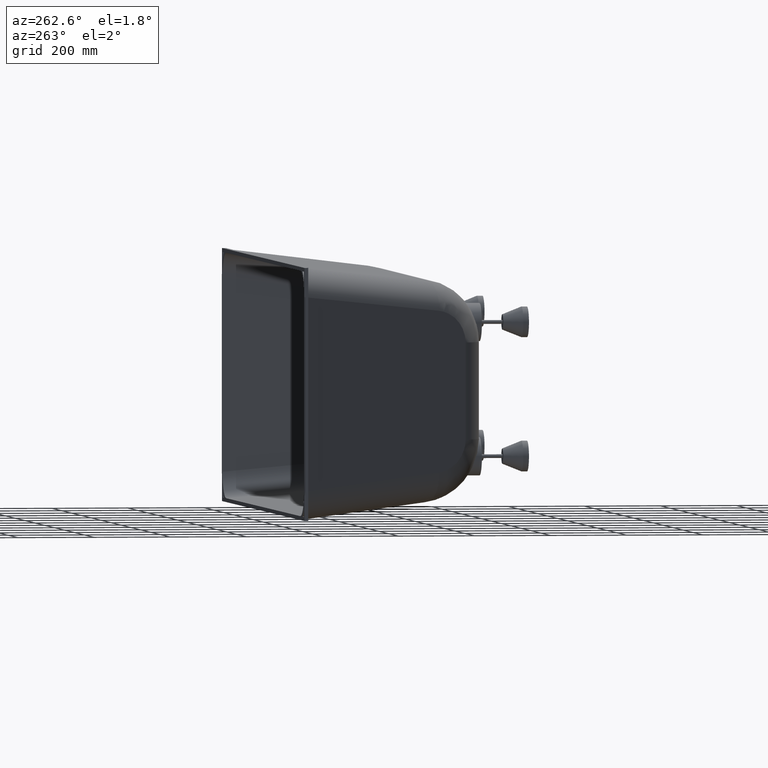
[diagram: clean part render]
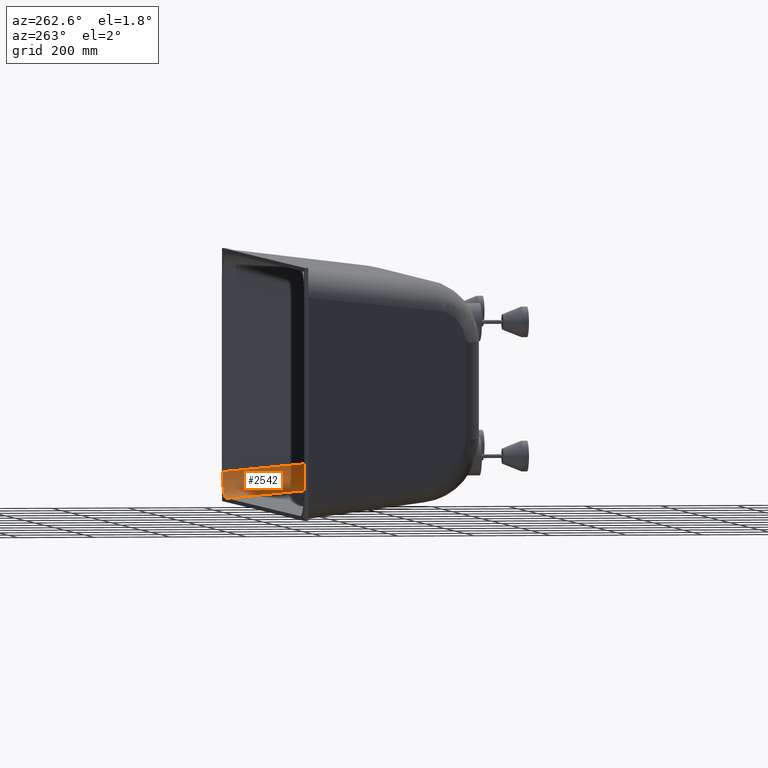
[diagram: same view with one face highlighted and labeled with its STEP entity id]
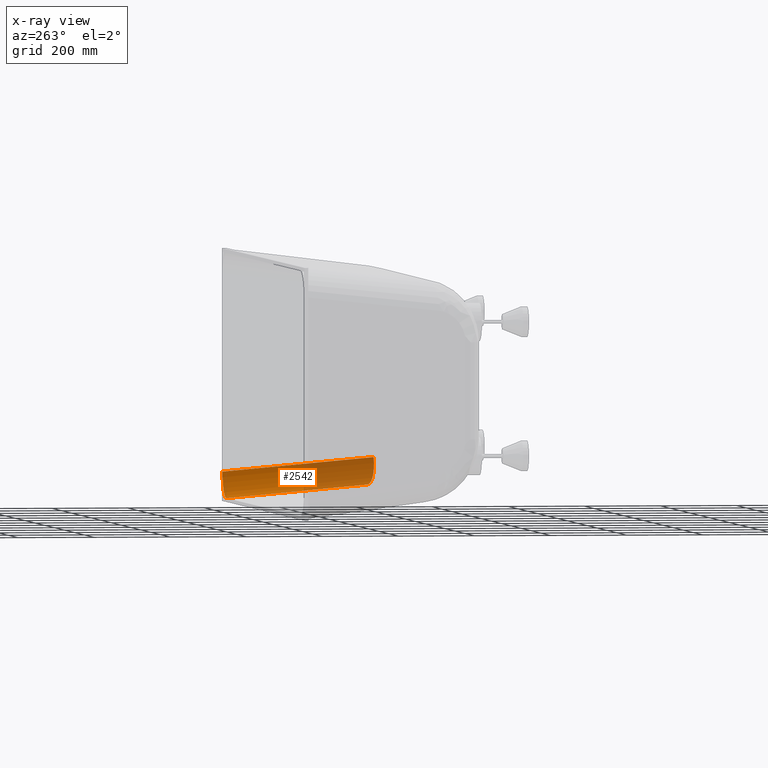
[diagram: x-ray of the same camera — body ghosted, the highlighted face saturated]
A machine part, auxiliary view. The second image highlights one B-rep face of the part: STEP entity #2542.
The next image is the same camera in x-ray: the body ghosted, the highlighted face saturated — about 46% of this face is hidden behind the body in this view.
In plain terms, the highlighted cylindrical surface (edge-blend (fillet) strip) has radius 70 mm, axis along (-0.4471, -0.8888, 0.1004).
Its self-contained STEP definition (entity closure, byte-faithful):
#155 = LINE ( 'NONE', #4626, #9875 ) ;
#498 = CARTESIAN_POINT ( 'NONE',  ( 435.5730332988885000, -618.3268616971270100, -179.7234270595109300 ) ) ;
#533 = DIRECTION ( 'NONE',  ( 0.8933238780124903600, -0.4494134499241484400, 0.0000000000000000000 ) ) ;
#566 = DIRECTION ( 'NONE',  ( -0.4471435776645231700, -0.8888119278474394500, 0.1003791704961172800 ) ) ;
#753 = CYLINDRICAL_SURFACE ( 'NONE', #9896, 70.00000000000005700 ) ;
#1182 = VERTEX_POINT ( 'NONE', #7955 ) ;
#1403 = VERTEX_POINT ( 'NONE', #4576 ) ;
#1557 = DIRECTION ( 'NONE',  ( -0.4471435776645231200, -0.8888119278474395600, 0.1003791704961172900 ) ) ;
#1668 = CARTESIAN_POINT ( 'NONE',  ( 435.5730332988887300, -626.1824669561144700, -249.2812408981801600 ) ) ;
#1898 = CIRCLE ( 'NONE', #3204, 70.00000000000005700 ) ;
#2110 = EDGE_CURVE ( 'NONE', #1182, #4818, #4431, .T. ) ;
#2112 = ORIENTED_EDGE ( 'NONE', *, *, #8137, .T. ) ;
#2271 = CARTESIAN_POINT ( 'NONE',  ( 794.6228049948350600, 0.0000000000000000000, -320.0000000000000000 ) ) ;
#2497 = EDGE_CURVE ( 'NONE', #8964, #1182, #7220, .T. ) ;
#2542 = ADVANCED_FACE ( 'NONE', ( #5978 ), #753, .F. ) ;
#2981 = CARTESIAN_POINT ( 'NONE',  ( 574.8195190304028300, -349.3945545020432100, -280.5406560623976600 ) ) ;
#3054 = CARTESIAN_POINT ( 'NONE',  ( 824.9999999999995500, 0.0000000000000000000, -292.6908157354297900 ) ) ;
#3086 = CARTESIAN_POINT ( 'NONE',  ( 825.0000000000000000, 0.0000000000000000000, -253.1078606848700800 ) ) ;
#3204 = AXIS2_PLACEMENT_3D ( 'NONE', #6050, #6048, #6035 ) ;
#3475 = VECTOR ( 'NONE', #1557, 1000.000000000000100 ) ;
#3608 = CARTESIAN_POINT ( 'NONE',  ( 750.5929602069953700, 0.0000000000000000000, -320.0000000000000000 ) ) ;
#4431 = LINE ( 'NONE', #1668, #3475 ) ;
#4576 = CARTESIAN_POINT ( 'NONE',  ( 637.3521904912773800, -372.9978907377464500, -210.9828422237283400 ) ) ;
#4591 = DIRECTION ( 'NONE',  ( 0.4471435776645231700, 0.8888119278474395600, -0.1003791704961172800 ) ) ;
#4626 = CARTESIAN_POINT ( 'NONE',  ( 828.0023801867015400, 5.967996534382409700, -253.7818644002520900 ) ) ;
#4818 = VERTEX_POINT ( 'NONE', #2981 ) ;
#5647 = CARTESIAN_POINT ( 'NONE',  ( 825.0000000000000000, 0.0000000000000000000, -253.1078606848700800 ) ) ;
#5978 = FACE_OUTER_BOUND ( 'NONE', #6650, .T. ) ;
#6035 = DIRECTION ( 'NONE',  ( 0.8933238780124903600, -0.4494134499241484400, 0.0000000000000000000 ) ) ;
#6048 = DIRECTION ( 'NONE',  ( -0.4471435776645234000, -0.8888119278474395600, 0.1003791704961171000 ) ) ;
#6050 = CARTESIAN_POINT ( 'NONE',  ( 574.8195190304028300, -341.5389492430559200, -210.9828422237283700 ) ) ;
#6583 = ORIENTED_EDGE ( 'NONE', *, *, #2110, .T. ) ;
#6650 = EDGE_LOOP ( 'NONE', ( #8828, #6583, #2112, #7222 ) ) ;
#7220 =( BOUNDED_CURVE ( )  B_SPLINE_CURVE ( 3, ( #3086, #3054, #2271, #3608 ),
 .UNSPECIFIED., .F., .T. ) 
 B_SPLINE_CURVE_WITH_KNOTS ( ( 4, 4 ),
 ( 2.944649819031658600, 4.464990244977512300 ),
 .UNSPECIFIED. ) 
 CURVE ( )  GEOMETRIC_REPRESENTATION_ITEM ( )  RATIONAL_B_SPLINE_CURVE ( ( 1.000000000000000000, 0.8164791579160308700, 0.8164791579160308700, 1.000000000000000000 ) ) 
 REPRESENTATION_ITEM ( '' )  );
#7222 = ORIENTED_EDGE ( 'NONE', *, *, #9294, .T. ) ;
#7955 = CARTESIAN_POINT ( 'NONE',  ( 750.5929602069953700, 0.0000000000000000000, -320.0000000000000000 ) ) ;
#8137 = EDGE_CURVE ( 'NONE', #4818, #1403, #1898, .T. ) ;
#8828 = ORIENTED_EDGE ( 'NONE', *, *, #2497, .T. ) ;
#8964 = VERTEX_POINT ( 'NONE', #5647 ) ;
#9294 = EDGE_CURVE ( 'NONE', #1403, #8964, #155, .T. ) ;
#9875 = VECTOR ( 'NONE', #4591, 1000.000000000000100 ) ;
#9896 = AXIS2_PLACEMENT_3D ( 'NONE', #498, #566, #533 ) ;